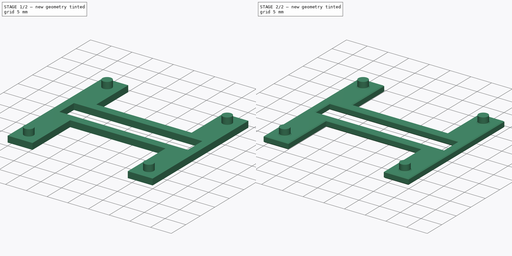
[diagram: build sequence overview — one tinted view per stage of 2, left to right]
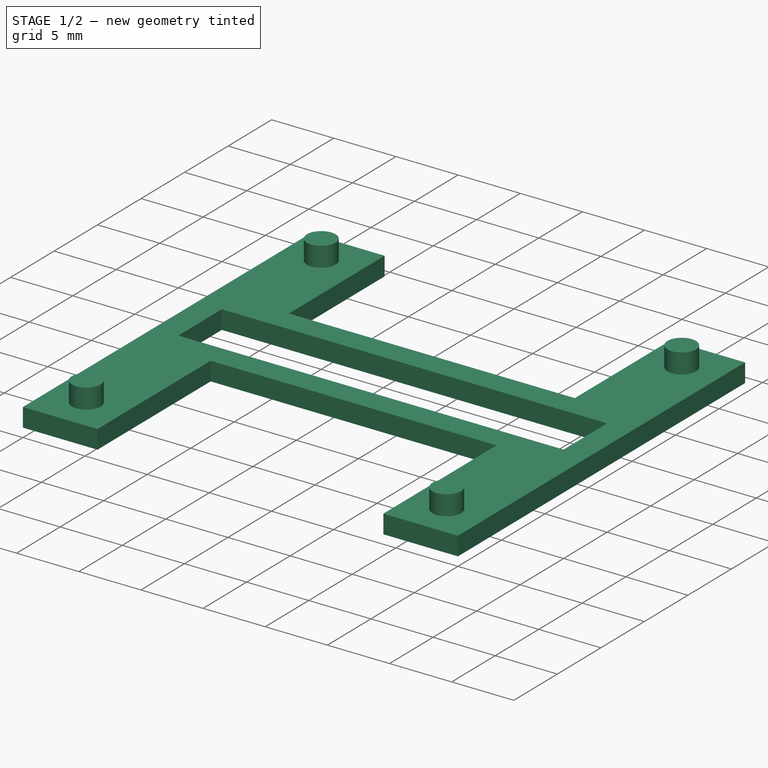
[diagram: stage 1 of 2 — iso view after this stage's code; geometry added in this stage tinted green]
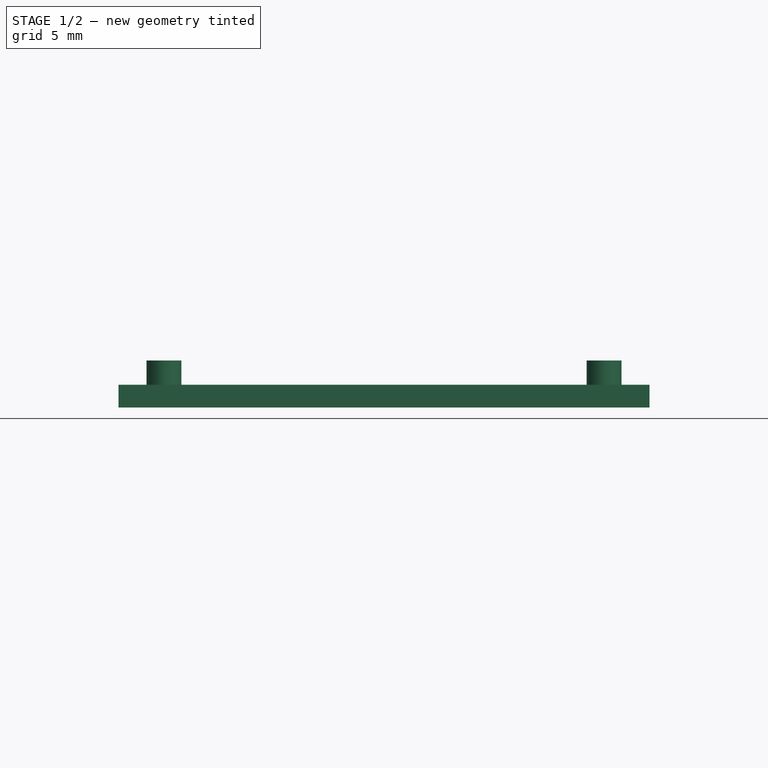
[diagram: stage 1 of 2 — front view after this stage's code; geometry added in this stage tinted green]
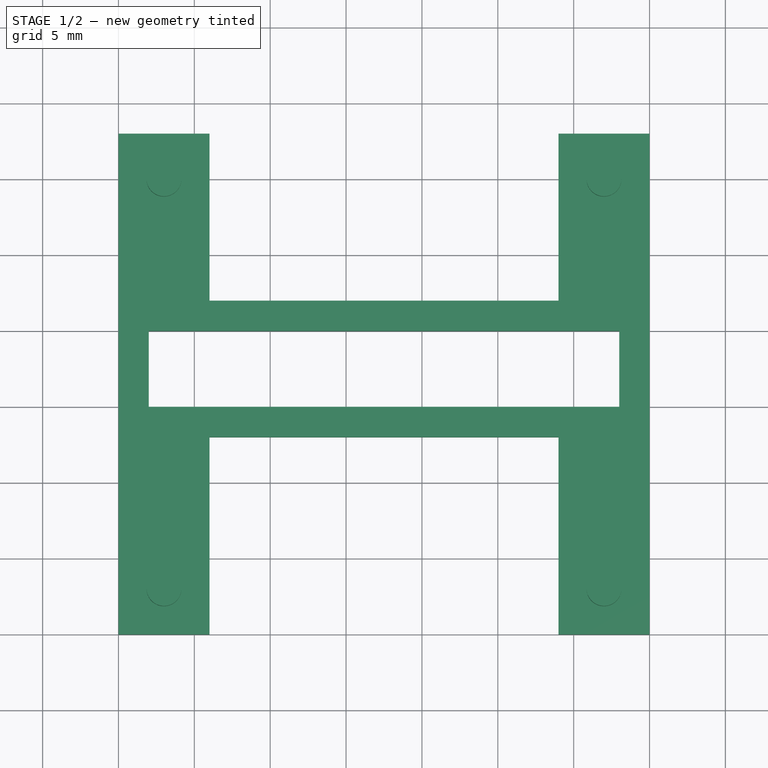
[diagram: stage 1 of 2 — top view after this stage's code; geometry added in this stage tinted green]
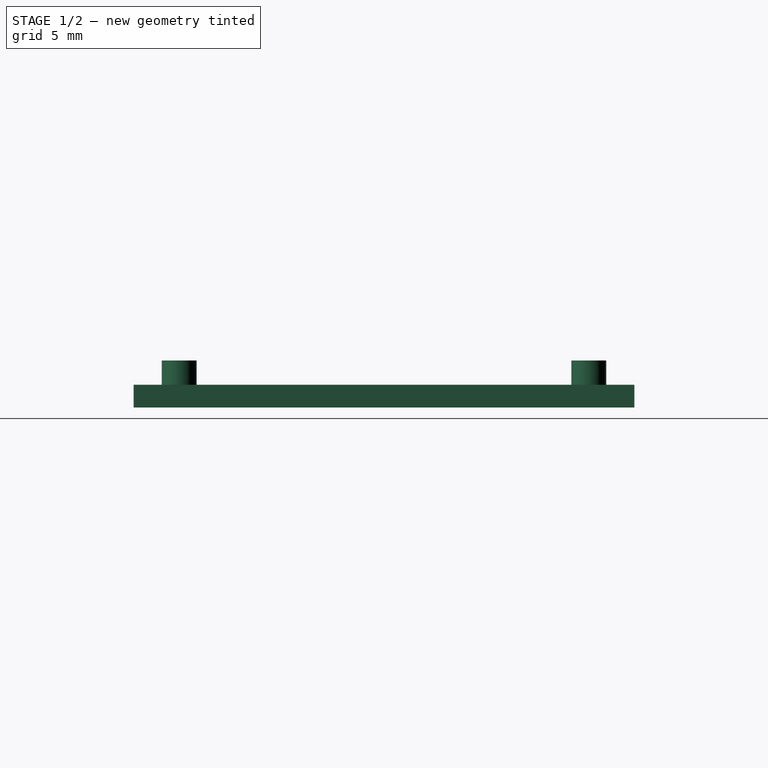
[diagram: stage 1 of 2 — right view after this stage's code; geometry added in this stage tinted green]
FCSTD DOCUMENT  (FreeCAD 0.16R)
Label: SC_display_holder13inch
License: All rights reserved
LicenseURL: http://en.wikipedia.org/wiki/All_rights_reserved
objects: Sketcher::SketchObject×2, PartDesign::Pad×2, PartDesign::Chamfer×2, App::DocumentObjectGroup×1
note: 8 computed .brp shape members not serialized (recipe doc carries the construction recipe); baked Part::Feature solids carry a one-line shape summary decoded from their .brp

FEATURE [App::DocumentObjectGroup] Group
FEATURE [Sketcher::SketchObject] Sketch
  sketch-geometry (16):
    g0: LineSegment StartX=35 StartY=0 StartZ=0 EndX=35 EndY=33 EndZ=0
    g1: LineSegment StartX=0 StartY=33 StartZ=0 EndX=0 EndY=0 EndZ=0
    g2: LineSegment StartX=2 StartY=15 StartZ=0 EndX=33 EndY=15 EndZ=0
    g3: LineSegment StartX=33 StartY=15 StartZ=0 EndX=33 EndY=20 EndZ=0
    g4: LineSegment StartX=33 StartY=20 StartZ=0 EndX=2 EndY=20 EndZ=0
    g5: LineSegment StartX=2 StartY=20 StartZ=0 EndX=2 EndY=15 EndZ=0
    g6: LineSegment StartX=6 StartY=0 StartZ=0 EndX=6 EndY=13 EndZ=0
    g7: LineSegment StartX=6 StartY=13 StartZ=0 EndX=29 EndY=13 EndZ=0
    g8: LineSegment StartX=29 StartY=13 StartZ=0 EndX=29 EndY=0 EndZ=0
    g9: LineSegment StartX=0 StartY=0 StartZ=0 EndX=6 EndY=0 EndZ=0
    g10: LineSegment StartX=29 StartY=0 StartZ=0 EndX=35 EndY=0 EndZ=0
    g11: LineSegment StartX=6 StartY=33 StartZ=0 EndX=6 EndY=22 EndZ=0
    g12: LineSegment StartX=6 StartY=22 StartZ=0 EndX=29 EndY=22 EndZ=0
    g13: LineSegment StartX=29 StartY=22 StartZ=0 EndX=29 EndY=33 EndZ=0
    g14: LineSegment StartX=0 StartY=33 StartZ=0 EndX=6 EndY=33 EndZ=0
    g15: LineSegment StartX=29 StartY=33 StartZ=0 EndX=35 EndY=33 EndZ=0
  constraints (47):
    c: Vertical(g0)
    c: Coincident(g2,g3)
    c: Coincident(g3,g4)
    c: Coincident(g4,g5)
    c: Coincident(g5,g2)
    c: Horizontal(g2)
    c: Horizontal(g4)
    c: Vertical(g3)
    c: Vertical(g5)
    c: Distance(g1) = 33
    c: DistanceX(g-1,g2) = 2
    c: DistanceY(g-1,g2) = 15
    c: Vertical(g6)
    c: Coincident(g7,g6)
    c: Horizontal(g7)
    c: Coincident(g8,g7)
    c: Vertical(g8)
    c: Coincident(g9,g-1)
    c: Coincident(g9,g6)
    c: Horizontal(g9)
    c: Coincident(g10,g8)
    c: Coincident(g10,g0)
    c: Horizontal(g10)
    c: Distance(g9) = 6
    c: DistanceY(g6,g2) = 2
    c: DistanceX(g2,g0) = 2
    c: DistanceX(g-1,g0) = 35
    c: Coincident(g12,g11)
    c: Horizontal(g12)
    c: Coincident(g13,g12)
    c: Vertical(g13)
    c: Parallel(g13,g11)
    c: Parallel(g11,g1)
    c: Coincident(g14,g1)
    c: Coincident(g14,g11)
    c: Coincident(g15,g13)
    c: Coincident(g15,g0)
    c: Parallel(g14,g15)
    c: Parallel(g15,g-1)
    c: Equal(g0,g1)
    c: DistanceY(g-1,g0) = 0
    c: Equal(g15,g14)
    c: DistanceX(g14,g14) = 6
    c: Coincident(g1,g-1)
    c: DistanceY(g11,g1) = 11
    c: DistanceY(g4,g11) = 2
    c: Equal(g10,g9)
FEATURE [PartDesign::Pad] Pad
  Length = 1.5
  Length2 = 100
  Sketch = -> Sketch
  Type = 0
FEATURE [Sketcher::SketchObject] Sketch001
  ExternalGeometry = -> [Pad]
  Placement = pos=(0,0,1.5) rot=(0,0,1;0rad)
  Support = -> Pad [Face18]
  sketch-geometry (4):
    g0: Circle CenterX=3 CenterY=30 CenterZ=0 NormalX=0 NormalY=0 NormalZ=1 Radius=1.15
    g1: Circle CenterX=32 CenterY=30 CenterZ=0 NormalX=0 NormalY=0 NormalZ=1 Radius=1.15
    g2: Circle CenterX=32 CenterY=3 CenterZ=0 NormalX=0 NormalY=0 NormalZ=1 Radius=1.15
    g3: Circle CenterX=3 CenterY=3 CenterZ=0 NormalX=0 NormalY=0 NormalZ=1 Radius=1.15
  constraints (12):
    c: Radius(g0) = 1.15
    c: Equal(g0,g3)
    c: Equal(g0,g2)
    c: Equal(g0,g1)
    c: DistanceY(g0,g-4) = 3
    c: DistanceX(g-4,g0) = 3
    c: DistanceX(g1,g-6) = 3
    c: DistanceY(g1,g-6) = 3
    c: DistanceY(g-7,g2) = 3
    c: DistanceX(g2,g-7) = 3
    c: DistanceX(g-1,g3) = 3
    c: DistanceY(g-1,g3) = 3
FEATURE [PartDesign::Pad] Pad001
  Length = 1.6
  Length2 = 100
  Sketch = -> Sketch001
  Type = 0
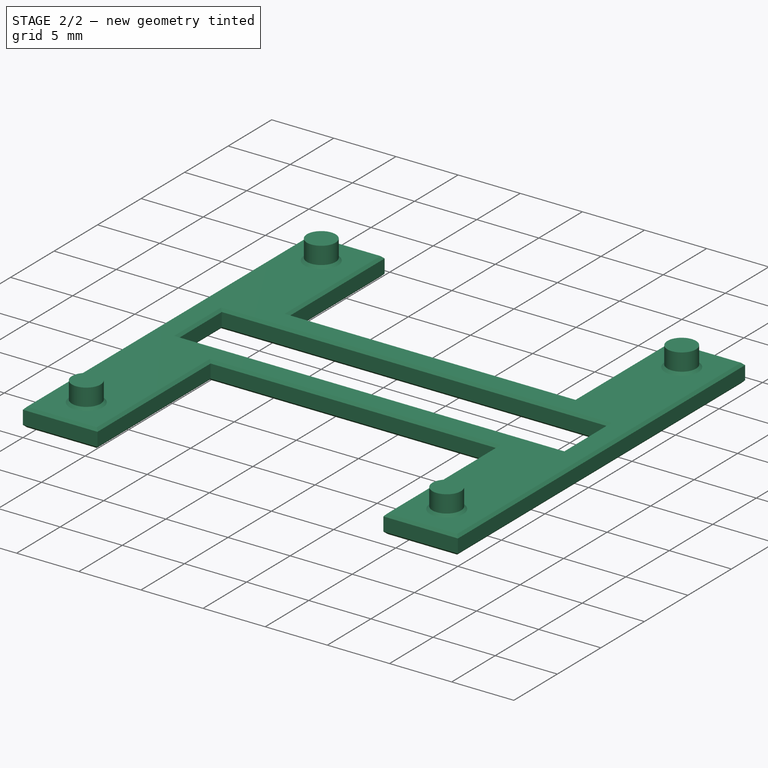
[diagram: stage 2 of 2 — iso view after this stage's code; geometry added in this stage tinted green]
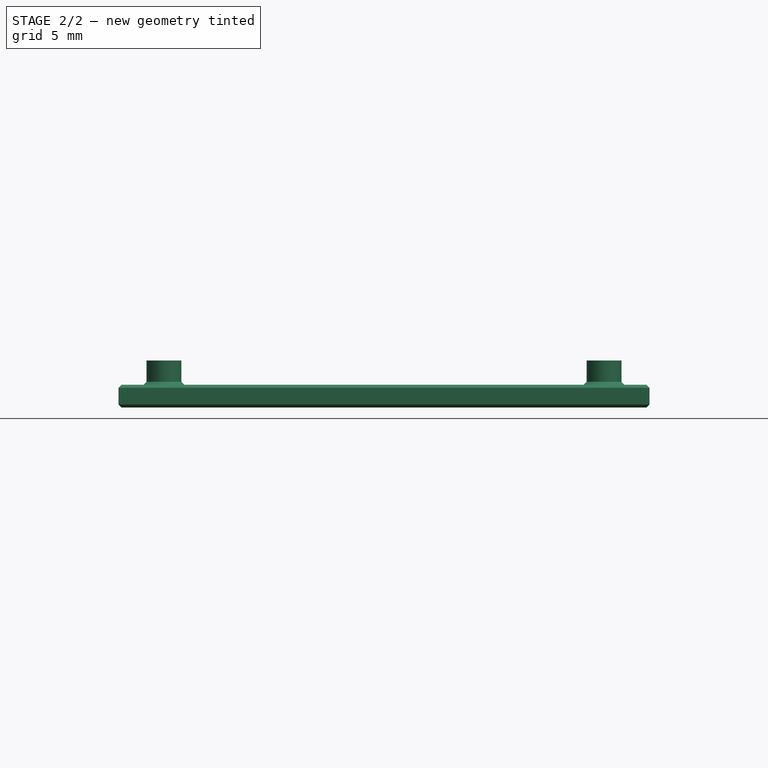
[diagram: stage 2 of 2 — front view after this stage's code; geometry added in this stage tinted green]
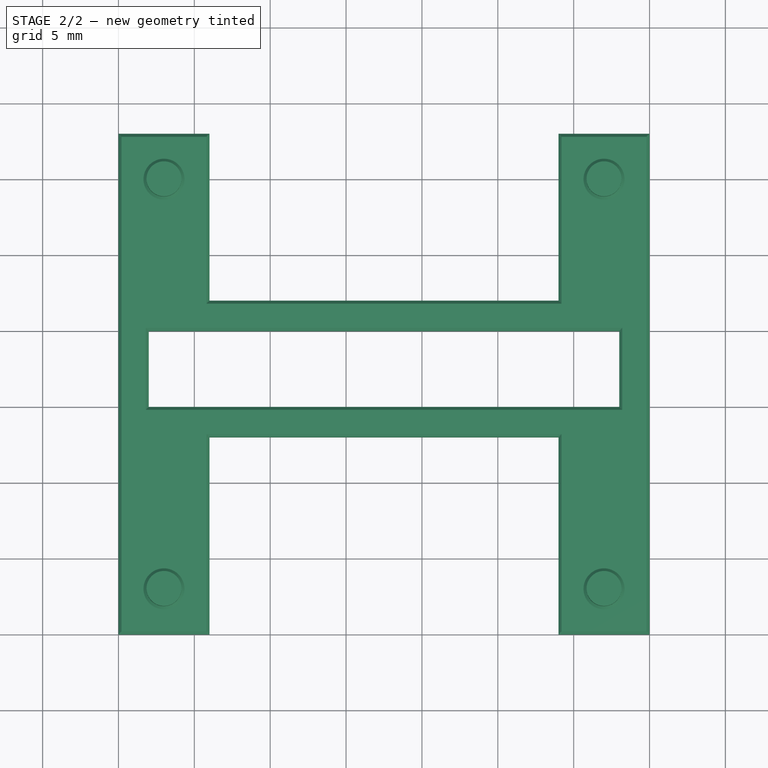
[diagram: stage 2 of 2 — top view after this stage's code; geometry added in this stage tinted green]
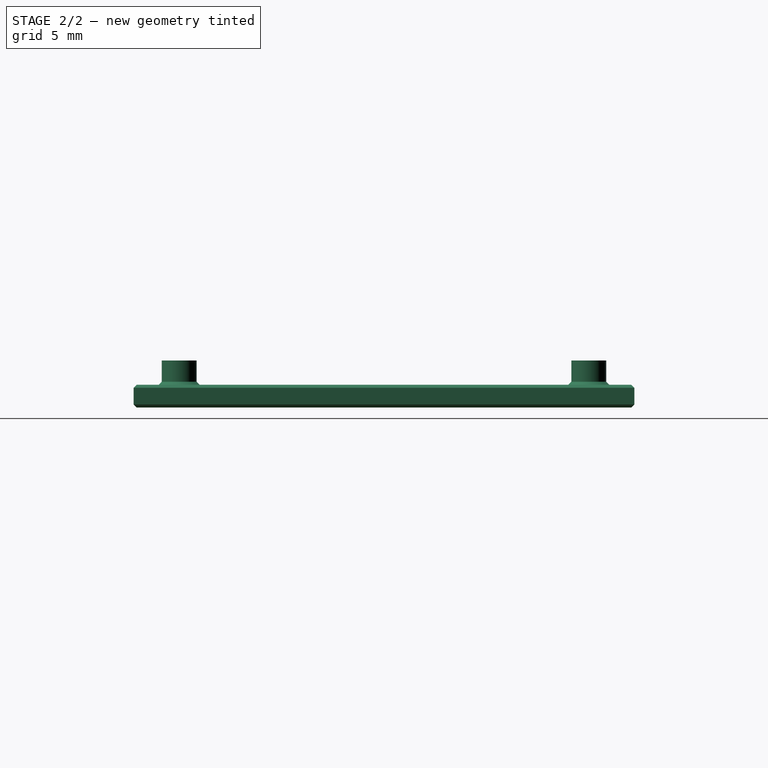
[diagram: stage 2 of 2 — right view after this stage's code; geometry added in this stage tinted green]
FEATURE [PartDesign::Chamfer] Chamfer
  Base = -> Pad001 [Edge4,Edge7,Edge10,Edge24,Edge25,Edge26,Edge27,Edge28,Edge29,Edge30,Edge31,Edge32,Edge33,Edge34,Edge35,Edge36,Edge37,Edge38,Edge39,Edge40]
  Size = 0.2
FEATURE [PartDesign::Chamfer] Chamfer001
  Base = -> Chamfer [Edge3,Edge11,Edge12,Edge13,Edge14,Edge15,Edge16,Edge17,Edge18,Edge19,Edge20,Edge6,Edge21,Edge22,Edge23,Edge24]
  Size = 0.2
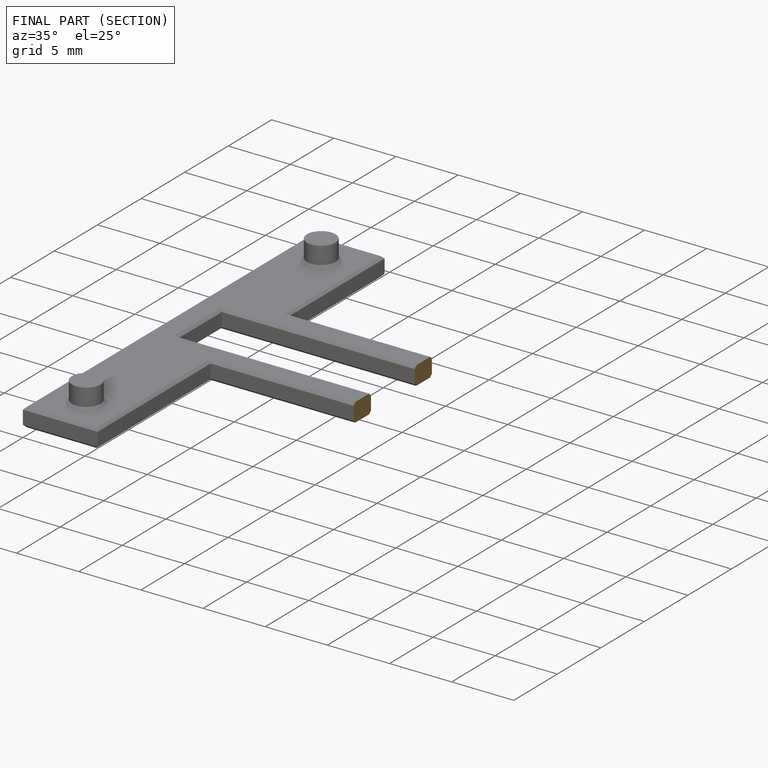
[diagram: finished part — half-section view (interior)]
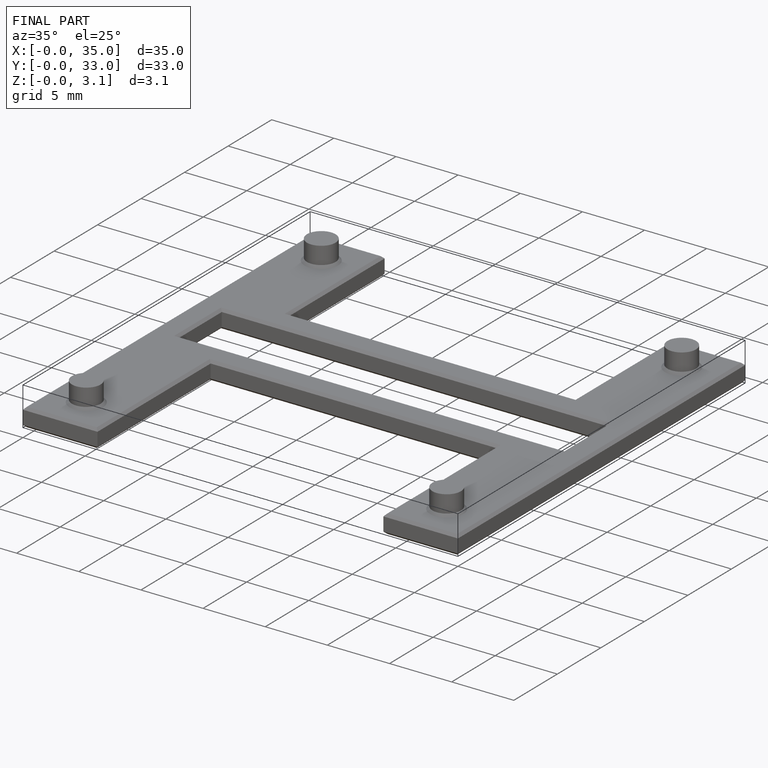
[diagram: finished part — iso view with bounding-box wireframe]
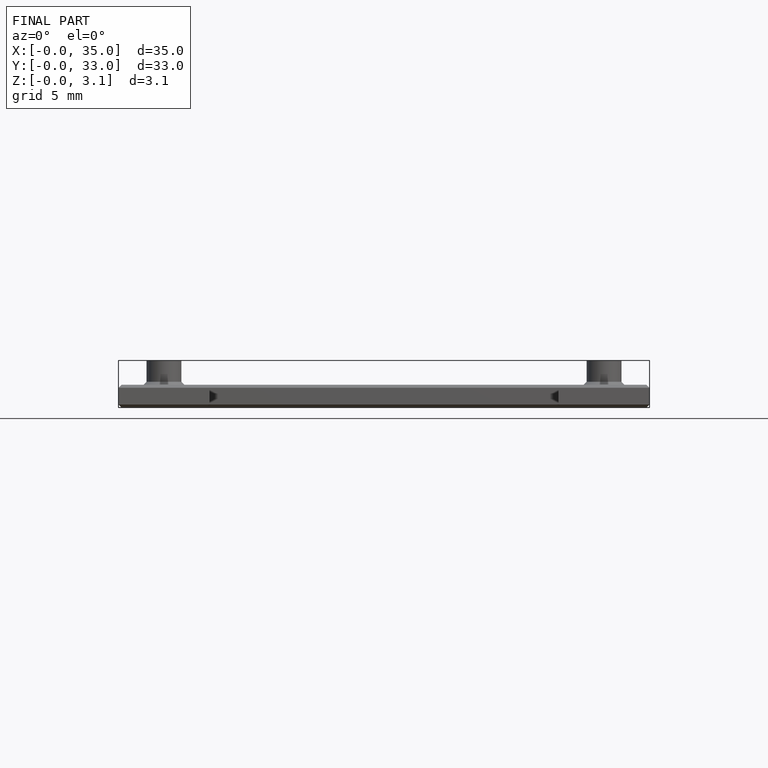
[diagram: finished part — front view with bounding-box wireframe]
